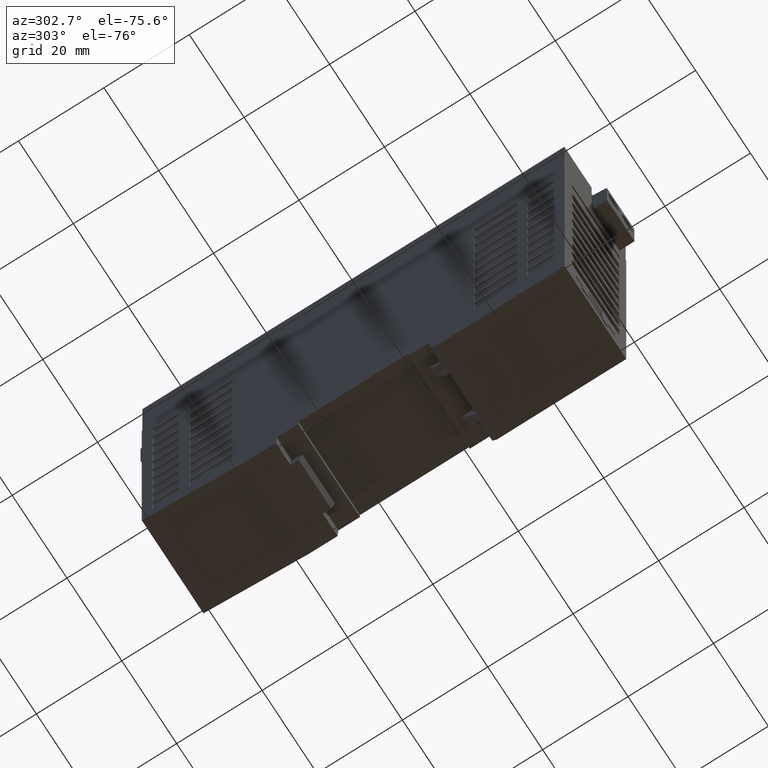
[diagram: clean part render]
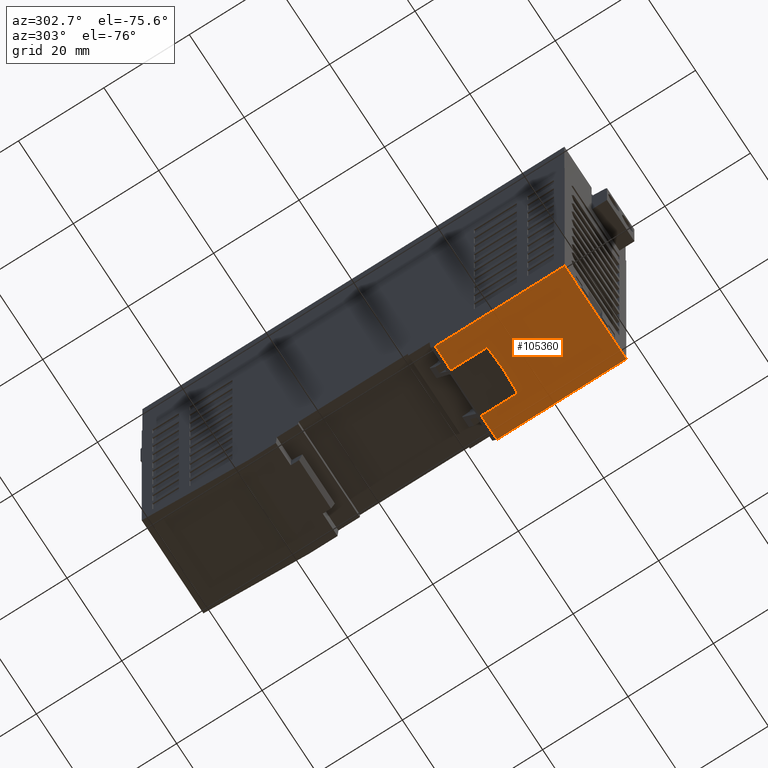
[diagram: same view with one face highlighted and labeled with its STEP entity id]
A machine part, auxiliary view. The second image highlights one B-rep face of the part: STEP entity #105360.
In plain terms, the highlighted planar face has unit normal (0, 0, 1).
Its self-contained STEP definition (entity closure, byte-faithful):
#7720=CARTESIAN_POINT('',(-11.25,-6.,-19.1982991225571));
#7730=VERTEX_POINT('',#7720);
#7760=CARTESIAN_POINT('',(-11.25,-6.,0.));
#7770=DIRECTION('',(0.,0.,1.));
#7780=VECTOR('',#7770,1.);
#7790=LINE('',#7760,#7780);
#7800=CARTESIAN_POINT('',(-11.25,-6.,-49.5));
#7810=VERTEX_POINT('',#7800);
#7820=EDGE_CURVE('',#7810,#7730,#7790,.T.);
#21790=CARTESIAN_POINT('',(11.25,-6.,-49.5));
#21800=VERTEX_POINT('',#21790);
#21830=CARTESIAN_POINT('',(11.25,-6.,0.));
#21840=DIRECTION('',(0.,0.,-1.));
#21850=VECTOR('',#21840,1.);
#21860=LINE('',#21830,#21850);
#21870=CARTESIAN_POINT('',(11.25,-5.99999999999999,-19.1982991225571));
#21880=VERTEX_POINT('',#21870);
#21890=EDGE_CURVE('',#21880,#21800,#21860,.T.);
#23640=CARTESIAN_POINT('',(0.,-5.99999999999999,-19.1982991225571));
#23650=DIRECTION('',(1.,0.,0.));
#23660=VECTOR('',#23650,1.);
#23670=LINE('',#23640,#23660);
#23680=CARTESIAN_POINT('',(5.551125818201,-6.,-19.1982991225571));
#23690=VERTEX_POINT('',#23680);
#23700=EDGE_CURVE('',#23690,#21880,#23670,.T.);
#104820=CARTESIAN_POINT('',(-11.25,-6.,-19.19829912255));
#104830=DIRECTION('',(0.,1.,0.));
#104840=DIRECTION('',(0.,0.,1.));
#104850=AXIS2_PLACEMENT_3D('',#104820,#104830,#104840);
#104860=PLANE('',#104850);
#104870=ORIENTED_EDGE('',*,*,#21890,.F.);
#104880=CARTESIAN_POINT('',(0.,-6.,-49.5));
#104890=DIRECTION('',(1.,0.,0.));
#104900=VECTOR('',#104890,1.);
#104910=LINE('',#104880,#104900);
#104920=EDGE_CURVE('',#7810,#21800,#104910,.T.);
#104930=ORIENTED_EDGE('',*,*,#104920,.T.);
#104940=ORIENTED_EDGE('',*,*,#7820,.F.);
#104950=CARTESIAN_POINT('',(0.,-5.99999999999999,-19.1982991225571));
#104960=DIRECTION('',(1.,0.,0.));
#104970=VECTOR('',#104960,1.);
#104980=LINE('',#104950,#104970);
#104990=CARTESIAN_POINT('',(-5.551125818201,-6.,-19.1982991225571));
#105000=VERTEX_POINT('',#104990);
#105010=EDGE_CURVE('',#7730,#105000,#104980,.T.);
#105020=ORIENTED_EDGE('',*,*,#105010,.F.);
#105030=CARTESIAN_POINT('',(-5.551125818201,-6.,0.));
#105040=DIRECTION('',(-1.38777878078145E-16,0.,1.));
#105050=VECTOR('',#105040,1.);
#105060=LINE('',#105030,#105050);
#105070=CARTESIAN_POINT('',(-5.551125818201,-6.,-27.7128728025089));
#105080=VERTEX_POINT('',#105070);
#105090=EDGE_CURVE('',#105080,#105000,#105060,.T.);
#105100=ORIENTED_EDGE('',*,*,#105090,.T.);
#105110=CARTESIAN_POINT('',(0.,-6.,-28.000000000002));
#105120=DIRECTION('',(-0.998664984942109,0.,0.0516550854280403));
#105130=VECTOR('',#105120,1.);
#105140=LINE('',#105110,#105130);
#105150=CARTESIAN_POINT('',(-4.14119134789335E-13,-6.,-28.));
#105160=VERTEX_POINT('',#105150);
#105170=EDGE_CURVE('',#105160,#105080,#105140,.T.);
#105180=ORIENTED_EDGE('',*,*,#105170,.T.);
#105190=CARTESIAN_POINT('',(0.,-6.,-28.));
#105200=DIRECTION('',(-0.998664984942109,-0.,-0.0516550854280406));
#105210=VECTOR('',#105200,1.);
#105220=LINE('',#105190,#105210);
#105230=CARTESIAN_POINT('',(5.551125818201,-6.,-27.7128728025068));
#105240=VERTEX_POINT('',#105230);
#105250=EDGE_CURVE('',#105240,#105160,#105220,.T.);
#105260=ORIENTED_EDGE('',*,*,#105250,.T.);
#105270=CARTESIAN_POINT('',(5.551125818201,-6.,0.));
#105280=DIRECTION('',(1.38777878078145E-16,0.,-1.));
#105290=VECTOR('',#105280,1.);
#105300=LINE('',#105270,#105290);
#105310=EDGE_CURVE('',#23690,#105240,#105300,.T.);
#105320=ORIENTED_EDGE('',*,*,#105310,.T.);
#105330=ORIENTED_EDGE('',*,*,#23700,.F.);
#105340=EDGE_LOOP('',(#105330,#105320,#105260,#105180,#105100,#105020,
#104940,#104930,#104870));
#105350=FACE_OUTER_BOUND('',#105340,.T.);
#105360=ADVANCED_FACE('',(#105350),#104860,.F.);